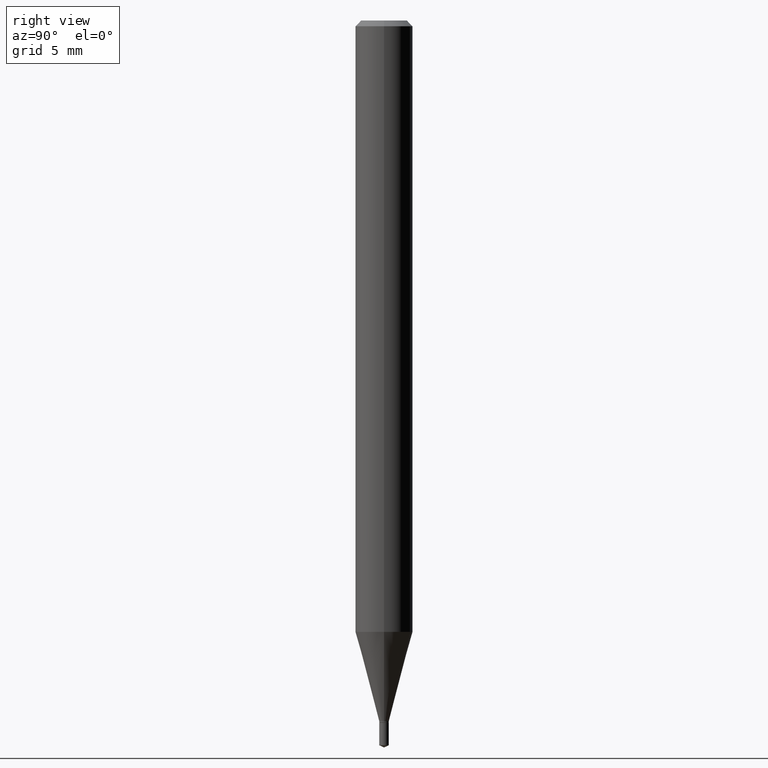
[diagram: clean part render]
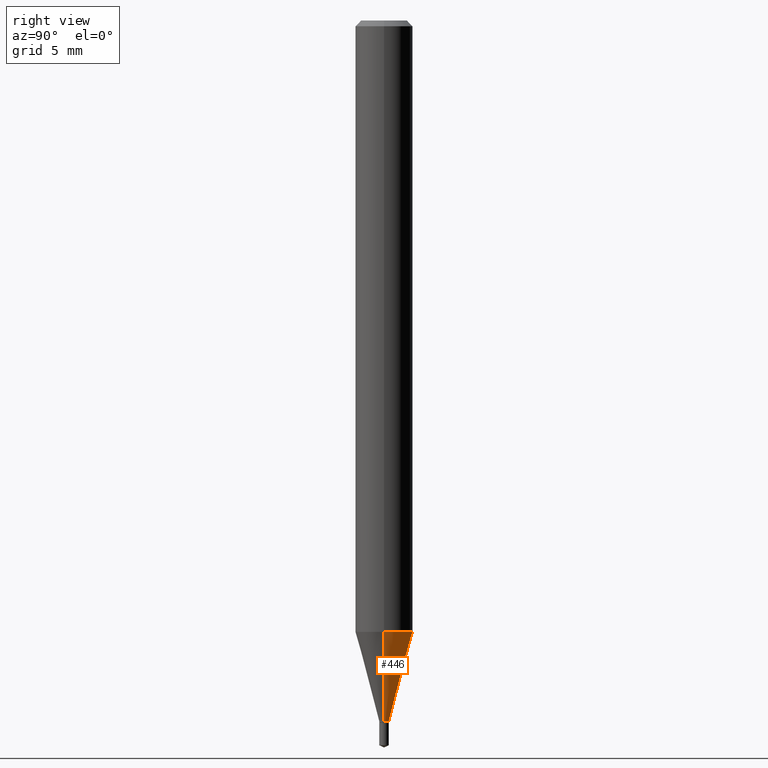
[diagram: same view with one face highlighted and labeled with its STEP entity id]
A machine part, right view. The second image highlights one B-rep face of the part: STEP entity #446.
In plain terms, the highlighted conical surface has half-angle 15 deg.
Its self-contained STEP definition (entity closure, byte-faithful):
#3 = DIRECTION ( 'NONE',  ( -2.445468806185136597E-29, 3.491481338843145583E-15, 1.000000000000000000 ) ) ;
#33 = ORIENTED_EDGE ( 'NONE', *, *, #67, .T. ) ;
#61 = ORIENTED_EDGE ( 'NONE', *, *, #396, .F. ) ;
#67 = EDGE_CURVE ( 'NONE', #313, #448, #415, .T. ) ;
#74 = EDGE_LOOP ( 'NONE', ( #33, #201, #61, #80 ) ) ;
#80 = ORIENTED_EDGE ( 'NONE', *, *, #93, .F. ) ;
#93 = EDGE_CURVE ( 'NONE', #313, #347, #287, .T. ) ;
#127 = CARTESIAN_POINT ( 'NONE',  ( 3.077092071054366958E-29, -4.393271963566061633E-15, -1.258283100267610921 ) ) ;
#128 = AXIS2_PLACEMENT_3D ( 'NONE', #127, #3, #241 ) ;
#146 = DIRECTION ( 'NONE',  ( -0.2588190451025211281, 5.211531920934547886E-15, 0.9659258262890679791 ) ) ;
#155 = CARTESIAN_POINT ( 'NONE',  ( 3.526121471638348605E-29, -5.034366942477931573E-15, -1.441899999999999959 ) ) ;
#165 = VECTOR ( 'NONE', #146, 39.37007874015748854 ) ;
#171 = AXIS2_PLACEMENT_3D ( 'NONE', #155, #374, #447 ) ;
#201 = ORIENTED_EDGE ( 'NONE', *, *, #275, .T. ) ;
#208 = DIRECTION ( 'NONE',  ( -2.445468806185136597E-29, 3.491481338843145583E-15, 1.000000000000000000 ) ) ;
#231 = CARTESIAN_POINT ( 'NONE',  ( -0.05905000000000017180, -3.973696478099721352E-15, -1.258283100267610921 ) ) ;
#241 = DIRECTION ( 'NONE',  ( 1.000000000000000000, -6.982962677686270655E-15, 0.000000000000000000 ) ) ;
#244 = CIRCLE ( 'NONE', #128, 0.05905000000000015792 ) ;
#275 = EDGE_CURVE ( 'NONE', #448, #307, #305, .T. ) ;
#276 = CARTESIAN_POINT ( 'NONE',  ( -0.009849999999999999381, -4.968742834679114889E-15, -1.441899999999999959 ) ) ;
#287 = LINE ( 'NONE', #419, #399 ) ;
#292 = DIRECTION ( 'NONE',  ( 0.2588190451025211281, 1.565188264969622954E-15, 0.9659258262890679791 ) ) ;
#305 = LINE ( 'NONE', #335, #165 ) ;
#307 = VERTEX_POINT ( 'NONE', #231 ) ;
#313 = VERTEX_POINT ( 'NONE', #314 ) ;
#314 = CARTESIAN_POINT ( 'NONE',  ( 0.009849999999999999381, -5.103149124853140392E-15, -1.441899999999999959 ) ) ;
#324 = CARTESIAN_POINT ( 'NONE',  ( 3.526121471638348605E-29, -5.034366942477931573E-15, -1.441899999999999959 ) ) ;
#335 = CARTESIAN_POINT ( 'NONE',  ( -0.009849999999999999381, -4.964378483005560736E-15, -1.441899999999999959 ) ) ;
#347 = VERTEX_POINT ( 'NONE', #370 ) ;
#351 = DIRECTION ( 'NONE',  ( 1.000000000000000000, -6.982962677686229634E-15, 0.000000000000000000 ) ) ;
#370 = CARTESIAN_POINT ( 'NONE',  ( 0.05905000000000017180, -4.805615909683436554E-15, -1.258283100267610921 ) ) ;
#374 = DIRECTION ( 'NONE',  ( -2.445468806185136597E-29, 3.491481338843145583E-15, 1.000000000000000000 ) ) ;
#375 = AXIS2_PLACEMENT_3D ( 'NONE', #324, #208, #351 ) ;
#376 = CONICAL_SURFACE ( 'NONE', #171, 0.009849999999999999381, 0.2617993877991498519 ) ;
#396 = EDGE_CURVE ( 'NONE', #347, #307, #244, .T. ) ;
#399 = VECTOR ( 'NONE', #292, 39.37007874015748854 ) ;
#415 = CIRCLE ( 'NONE', #375, 0.009849999999999999381 ) ;
#419 = CARTESIAN_POINT ( 'NONE',  ( 0.009849999999999999381, -5.103149124853140392E-15, -1.441899999999999959 ) ) ;
#446 = ADVANCED_FACE ( 'NONE', ( #483 ), #376, .T. ) ;
#447 = DIRECTION ( 'NONE',  ( 1.000000000000000000, -6.982962677686229634E-15, 0.000000000000000000 ) ) ;
#448 = VERTEX_POINT ( 'NONE', #276 ) ;
#483 = FACE_OUTER_BOUND ( 'NONE', #74, .T. ) ;